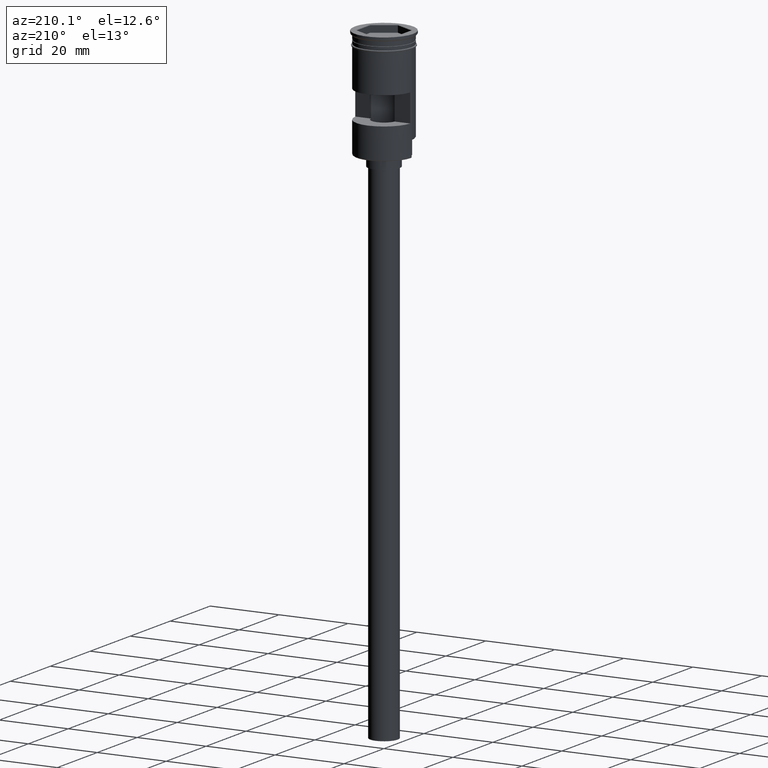
[diagram: clean part render]
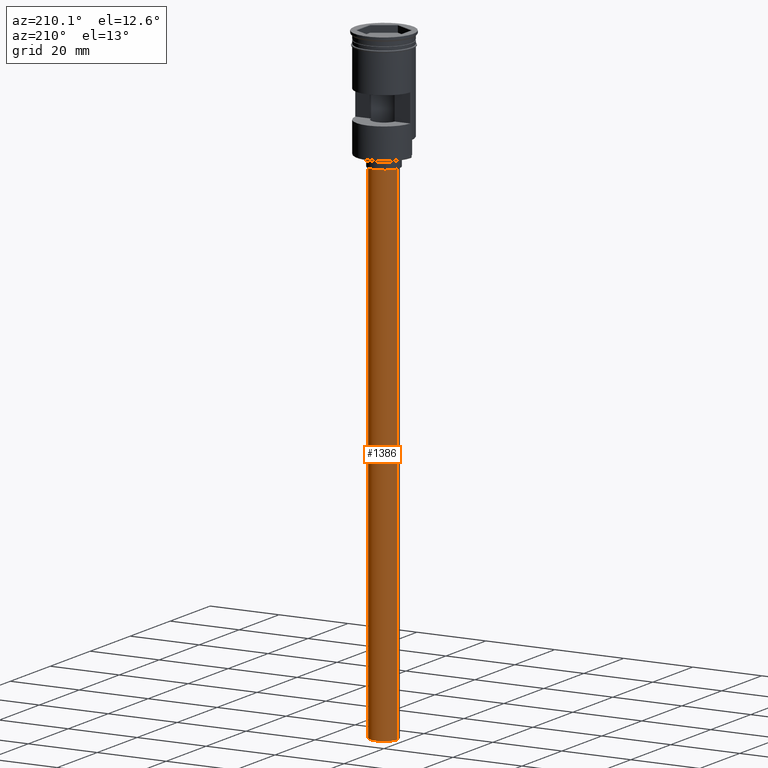
[diagram: same view with one face highlighted and labeled with its STEP entity id]
A machine part, auxiliary view. The second image highlights one B-rep face of the part: STEP entity #1386.
In plain terms, the highlighted cylindrical surface (edge-blend (fillet) strip) has radius 4 mm, axis along (-0, -0, 1).
Its self-contained STEP definition (entity closure, byte-faithful):
#10 = CARTESIAN_POINT ( 'NONE',  ( 4.000000000000000000, 0.000000000000000000, -35.00000000000000000 ) ) ;
#40 = EDGE_CURVE ( 'NONE', #929, #1454, #1278, .T. ) ;
#84 = DIRECTION ( 'NONE',  ( -0.000000000000000000, -0.000000000000000000, 1.000000000000000000 ) ) ;
#184 = AXIS2_PLACEMENT_3D ( 'NONE', #1165, #547, #323 ) ;
#219 = CARTESIAN_POINT ( 'NONE',  ( 0.000000000000000000, 0.000000000000000000, -182.0000000000000000 ) ) ;
#230 = VECTOR ( 'NONE', #332, 1000.000000000000000 ) ;
#261 = EDGE_LOOP ( 'NONE', ( #975, #456, #737, #595 ) ) ;
#323 = DIRECTION ( 'NONE',  ( -1.000000000000000000, 0.000000000000000000, 0.000000000000000000 ) ) ;
#332 = DIRECTION ( 'NONE',  ( -0.000000000000000000, -0.000000000000000000, 1.000000000000000000 ) ) ;
#358 = CARTESIAN_POINT ( 'NONE',  ( 4.000000000000000000, 0.000000000000000000, -182.0000000000000000 ) ) ;
#456 = ORIENTED_EDGE ( 'NONE', *, *, #796, .T. ) ;
#484 = CARTESIAN_POINT ( 'NONE',  ( -4.000000000000000000, 4.898587196589412829E-16, -35.00000000000000000 ) ) ;
#547 = DIRECTION ( 'NONE',  ( 0.000000000000000000, 0.000000000000000000, -1.000000000000000000 ) ) ;
#562 = VERTEX_POINT ( 'NONE', #1588 ) ;
#574 = LINE ( 'NONE', #680, #230 ) ;
#595 = ORIENTED_EDGE ( 'NONE', *, *, #733, .F. ) ;
#601 = DIRECTION ( 'NONE',  ( 0.000000000000000000, 0.000000000000000000, -1.000000000000000000 ) ) ;
#680 = CARTESIAN_POINT ( 'NONE',  ( 4.000000000000000000, 0.000000000000000000, -182.0000000000000000 ) ) ;
#716 = DIRECTION ( 'NONE',  ( -0.000000000000000000, -0.000000000000000000, 1.000000000000000000 ) ) ;
#733 = EDGE_CURVE ( 'NONE', #1292, #1454, #574, .T. ) ;
#737 = ORIENTED_EDGE ( 'NONE', *, *, #40, .T. ) ;
#781 = VECTOR ( 'NONE', #84, 1000.000000000000000 ) ;
#796 = EDGE_CURVE ( 'NONE', #562, #929, #945, .T. ) ;
#856 = CARTESIAN_POINT ( 'NONE',  ( 0.000000000000000000, 0.000000000000000000, -35.00000000000000000 ) ) ;
#858 = CYLINDRICAL_SURFACE ( 'NONE', #1286, 4.000000000000000000 ) ;
#929 = VERTEX_POINT ( 'NONE', #484 ) ;
#945 = LINE ( 'NONE', #1316, #781 ) ;
#975 = ORIENTED_EDGE ( 'NONE', *, *, #1527, .F. ) ;
#1072 = DIRECTION ( 'NONE',  ( -1.000000000000000000, 0.000000000000000000, 0.000000000000000000 ) ) ;
#1137 = CIRCLE ( 'NONE', #184, 4.000000000000000000 ) ;
#1165 = CARTESIAN_POINT ( 'NONE',  ( 0.000000000000000000, 0.000000000000000000, -182.0000000000000000 ) ) ;
#1201 = DIRECTION ( 'NONE',  ( 1.000000000000000000, 0.000000000000000000, 0.000000000000000000 ) ) ;
#1230 = AXIS2_PLACEMENT_3D ( 'NONE', #856, #601, #1072 ) ;
#1278 = CIRCLE ( 'NONE', #1230, 4.000000000000000000 ) ;
#1286 = AXIS2_PLACEMENT_3D ( 'NONE', #219, #716, #1201 ) ;
#1292 = VERTEX_POINT ( 'NONE', #358 ) ;
#1316 = CARTESIAN_POINT ( 'NONE',  ( -4.000000000000000000, 4.898587196589412829E-16, -182.0000000000000000 ) ) ;
#1321 = FACE_OUTER_BOUND ( 'NONE', #261, .T. ) ;
#1386 = ADVANCED_FACE ( 'NONE', ( #1321 ), #858, .T. ) ;
#1454 = VERTEX_POINT ( 'NONE', #10 ) ;
#1527 = EDGE_CURVE ( 'NONE', #562, #1292, #1137, .T. ) ;
#1588 = CARTESIAN_POINT ( 'NONE',  ( -4.000000000000000000, 4.898587196589412829E-16, -182.0000000000000000 ) ) ;